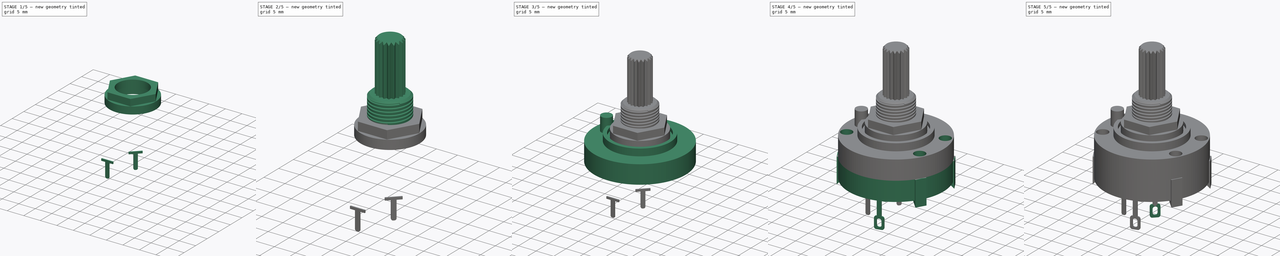
[diagram: build sequence overview — one tinted view per stage of 5, left to right]
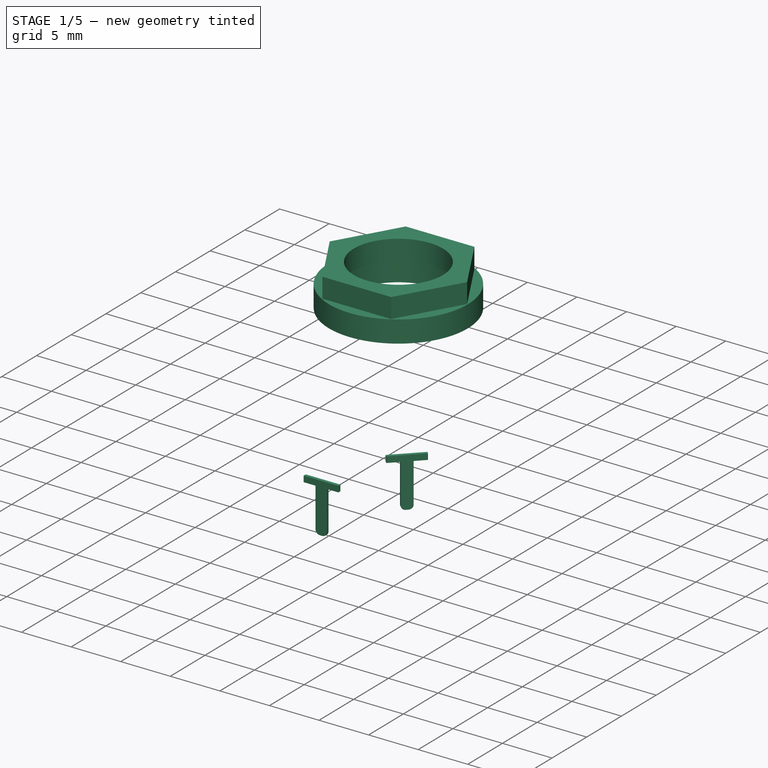
[diagram: stage 1 of 5 — iso view after this stage's code; geometry added in this stage tinted green]
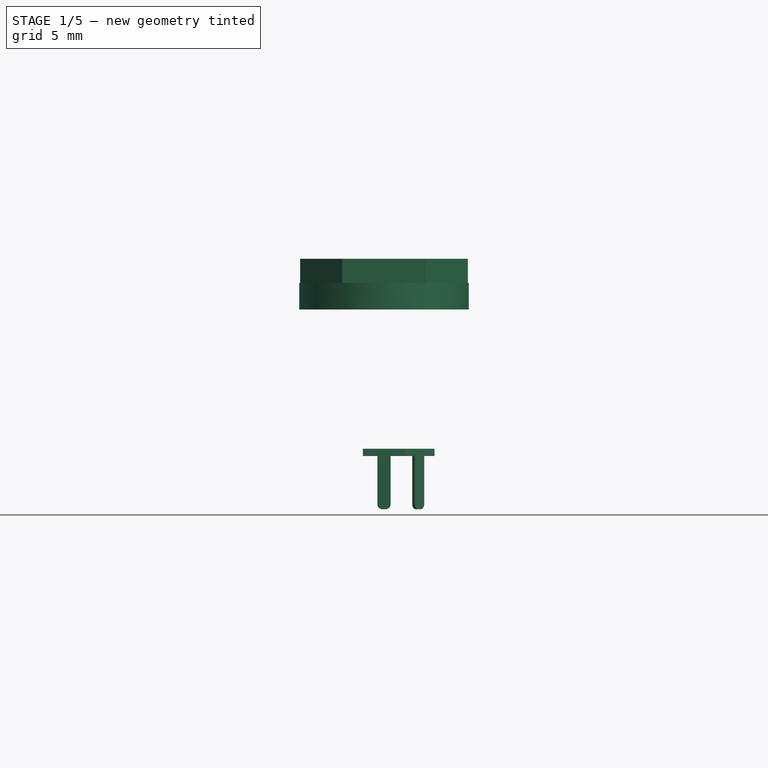
[diagram: stage 1 of 5 — front view after this stage's code; geometry added in this stage tinted green]
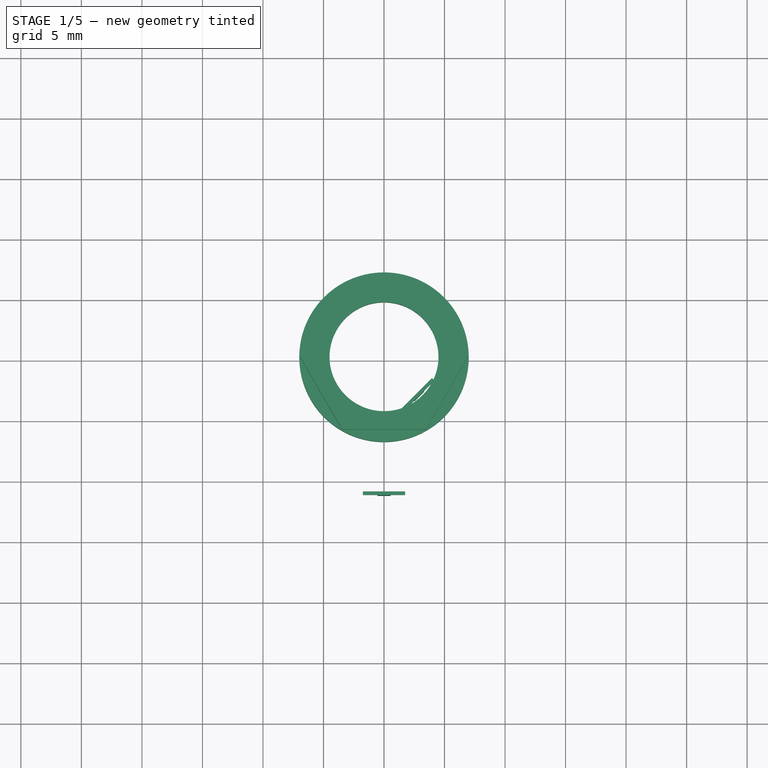
[diagram: stage 1 of 5 — top view after this stage's code; geometry added in this stage tinted green]
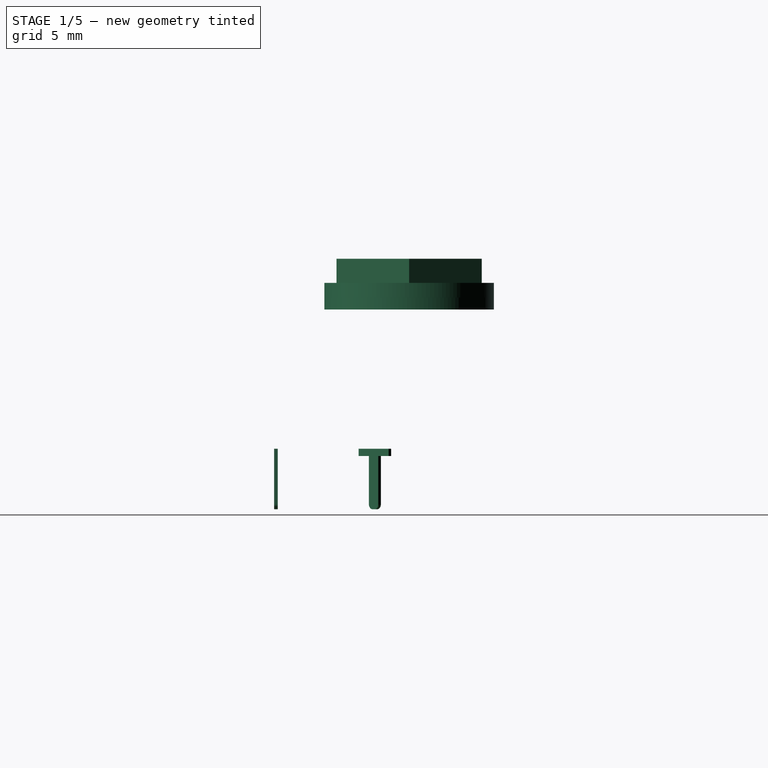
[diagram: stage 1 of 5 — right view after this stage's code; geometry added in this stage tinted green]
FCSTD DOCUMENT  (FreeCAD 0.19R16945 (Git))
Label: Alpha_Taiwan_SR2611_SR2612
License: All rights reserved
LicenseURL: http://en.wikipedia.org/wiki/All_rights_reserved
objects: PartDesign::Body×42, PartDesign::FeatureBase×28, Sketcher::SketchObject×21, PartDesign::Pad×15, PartDesign::Pocket×4, PartDesign::Mirrored×4, PartDesign::Fillet×2, PartDesign::MultiTransform×2, PartDesign::PolarPattern×2, PartDesign::Chamfer×2, Part::Helix×1, PartDesign::ShapeBinder×1, PartDesign::SubtractivePipe×1
note: 145 computed .brp shape members not serialized (recipe doc carries the construction recipe); baked Part::Feature solids carry a one-line shape summary decoded from their .brp

FEATURE [PartDesign::Body] Body004  label="Tab"
  Group = -> [Sketch003,Pad002]
  Origin = -> Origin004
  Tip = -> Pad002
FEATURE [Sketcher::SketchObject] Sketch014
  AttachmentOffset = pos=(0,0,4) rot=(0,0,1;0rad)
  MapMode = 5
  Placement = pos=(0,-4,-9e-16) rot=(1,0,0;1.5708rad)
  Support = -> [XZ_Plane009]
  sketch-geometry (10):
    g0: LineSegment StartX=-1.75 StartY=1.6 StartZ=0 EndX=1.75 EndY=1.6 EndZ=0
    g1: LineSegment StartX=1.75 StartY=1.6 StartZ=0 EndX=1.75 EndY=1 EndZ=0
    g2: LineSegment StartX=-1.75 StartY=1 StartZ=0 EndX=-1.75 EndY=1.6 EndZ=0
    g3: LineSegment StartX=-1.75 StartY=1 StartZ=0 EndX=-0.55 EndY=1 EndZ=0
    g4: LineSegment StartX=-0.55 StartY=1 StartZ=0 EndX=-0.55 EndY=-2.975 EndZ=0
    g5: LineSegment StartX=0.55 StartY=-2.975 StartZ=0 EndX=0.55 EndY=1 EndZ=0
    g6: LineSegment StartX=0.55 StartY=1 StartZ=0 EndX=1.75 EndY=1 EndZ=0
    g7: LineSegment StartX=-0.125 StartY=-3.4 StartZ=0 EndX=0.125 EndY=-3.4 EndZ=0
    g8: ArcOfCircle CenterX=-0.125 CenterY=-2.975 CenterZ=0 NormalX=0 NormalY=0 NormalZ=1 AngleXU=0 Radius=0.425 StartAngle=3.14159 EndAngle=4.71239
    g9: ArcOfCircle CenterX=0.125 CenterY=-2.975 CenterZ=0 NormalX=0 NormalY=0 NormalZ=1 AngleXU=0 Radius=0.425 StartAngle=4.71239 EndAngle=6.28319
  constraints (25):
    c: Coincident(g0,g1)
    c: Coincident(g2,g0)
    c: Horizontal(g0)
    c: Vertical(g1)
    c: Vertical(g2)
    c: Symmetric(g1,g2,g-2)
    c: Coincident(g2,g3)
    c: Horizontal(g3)
    c: Coincident(g3,g4)
    c: Vertical(g4)
    c: Vertical(g5)
    c: Coincident(g5,g6)
    c: Coincident(g6,g1)
    c: DistanceY(g1,g1) = 0.6
    c: DistanceX(g0,g0) = 3.5
    c: Symmetric(g5,g3,g-2)
    c: DistanceX(g3,g5) = 1.1
    c: Tangent(g4,g8) = -1.5708
    c: Tangent(g7,g8) = -1.5708
    c: Tangent(g5,g9) = -1.5708
    c: Tangent(g7,g9) = -1.5708
    c: DistanceY(g7,g1) = 4.4
    c: DistanceY(g0,g-1) = -1.6
    c: Symmetric(g9,g8,g-2)
    c: DistanceX(g7,g7) = 0.25
FEATURE [PartDesign::Pad] Pad008  label="Pad009"
  Length = 0.3
  Length2 = 100
  Midplane = true
  Placement = pos=(0,0,0) rot=(1,0,0;1.5708rad)
  Profile = -> Sketch014
  Type = 0
FEATURE [PartDesign::Body] Body007  label="Shaft"
  Group = -> [Sketch009,Pad006,Chamfer001,Sketch011,Pocket002,PolarPattern001]
  Origin = -> Origin007
  Tip = -> PolarPattern001
FEATURE [Sketcher::SketchObject] Sketch015
  AttachmentOffset = pos=(0,0,11) rot=(0,0,1;0rad)
  MapMode = 5
  Placement = pos=(0,-11,-2.4e-15) rot=(1,0,0;1.5708rad)
  Support = -> [XZ_Plane013]
  expr: Constraints[21] = Sketch014.Constraints[21]
  expr: Constraints[16] = Sketch014.Constraints[16]
  expr: Constraints[22] = Sketch014.Constraints[22]
  expr: Constraints[14] = Sketch014.Constraints[14]
  expr: Constraints[13] = Sketch014.Constraints[13]
  sketch-geometry (10):
    g0: LineSegment StartX=-1.75 StartY=1.6 StartZ=0 EndX=1.75 EndY=1.6 EndZ=0
    g1: LineSegment StartX=1.75 StartY=1.6 StartZ=0 EndX=1.75 EndY=1 EndZ=0
    g2: LineSegment StartX=-1.75 StartY=1 StartZ=0 EndX=-1.75 EndY=1.6 EndZ=0
    g3: LineSegment StartX=-1.75 StartY=1 StartZ=0 EndX=-0.55 EndY=1 EndZ=0
    g4: LineSegment StartX=-0.55 StartY=1 StartZ=0 EndX=-0.55 EndY=-2.975 EndZ=0
    g5: LineSegment StartX=0.55 StartY=-2.975 StartZ=0 EndX=0.55 EndY=1 EndZ=0
    g6: LineSegment StartX=0.55 StartY=1 StartZ=0 EndX=1.75 EndY=1 EndZ=0
    g7: LineSegment StartX=-0.125 StartY=-3.4 StartZ=0 EndX=0.125 EndY=-3.4 EndZ=0
    g8: ArcOfCircle CenterX=-0.125 CenterY=-2.975 CenterZ=0 NormalX=0 NormalY=0 NormalZ=1 AngleXU=0 Radius=0.425 StartAngle=3.14159 EndAngle=4.71239
    g9: ArcOfCircle CenterX=0.125 CenterY=-2.975 CenterZ=0 NormalX=0 NormalY=0 NormalZ=1 AngleXU=0 Radius=0.425 StartAngle=4.71239 EndAngle=6.28319
  constraints (25):
    c: Coincident(g0,g1)
    c: Coincident(g2,g0)
    c: Horizontal(g0)
    c: Vertical(g1)
    c: Vertical(g2)
    c: Symmetric(g1,g2,g-2)
    c: Coincident(g2,g3)
    c: Horizontal(g3)
    c: Coincident(g3,g4)
    c: Vertical(g4)
    c: Vertical(g5)
    c: Coincident(g5,g6)
    c: Coincident(g6,g1)
    c: DistanceY(g1,g1) = 0.6
    c: DistanceX(g0,g0) = 3.5
    c: Symmetric(g5,g3,g-2)
    c: DistanceX(g3,g5) = 1.1
    c: Tangent(g4,g8) = -1.5708
    c: Tangent(g7,g8) = -1.5708
    c: Tangent(g5,g9) = -1.5708
    c: Tangent(g7,g9) = -1.5708
    c: DistanceY(g7,g1) = 4.4
    c: DistanceY(g0,g-1) = -1.6
    c: Symmetric(g9,g8,g-2)
    c: DistanceX(g7,g7) = 0.25
FEATURE [PartDesign::Pad] Pad009  label="Pad010"
  Length = 0.3
  Length2 = 100
  Midplane = true
  Placement = pos=(0,0,0) rot=(1,0,0;1.5708rad)
  Profile = -> Sketch015
  Type = 0
FEATURE [PartDesign::Body] Body018  label="Pin_Throw_6"
  Group = -> [Clone007]
  Origin = -> Origin018
  Placement = pos=(0,0,0) rot=(0,0,1;2.87979rad)
  Tip = -> Clone007
FEATURE [PartDesign::FeatureBase] Clone008
  BaseFeature = -> Body013
FEATURE [PartDesign::Body] Body019  label="Pin_Throw_7"
  Group = -> [Clone008]
  Origin = -> Origin019
  Placement = pos=(0,0,0) rot=(0,0,1;3.40339rad)
  Tip = -> Clone008
FEATURE [PartDesign::FeatureBase] Clone011
  BaseFeature = -> Body013
FEATURE [PartDesign::Body] Body022  label="Pin_Throw_10"
  Group = -> [Clone011]
  Origin = -> Origin022
  Placement = pos=(0,0,0) rot=(0,0,1;4.97419rad)
  Tip = -> Clone011
FEATURE [PartDesign::FeatureBase] Clone013
  BaseFeature = -> Body013
FEATURE [PartDesign::Body] Body024  label="Pin_Throw_12"
  Group = -> [Clone013]
  Origin = -> Origin024
  Placement = pos=(0,0,0) rot=(0,0,-1;0.261799rad)
  Tip = -> Clone013
FEATURE [PartDesign::FeatureBase] Clone005
  BaseFeature = -> Body013
FEATURE [PartDesign::Body] Body016  label="Pin_Throw_4"
  Group = -> [Clone005]
  Origin = -> Origin016
  Placement = pos=(0,0,0) rot=(0,0,1;1.8326rad)
  Tip = -> Clone005
FEATURE [PartDesign::FeatureBase] Clone001
  BaseFeature = -> Body009
  Placement = pos=(0,0,0) rot=(0,0,1;0.785398rad)
FEATURE [PartDesign::Body] Body011  label="Pin_Pole_3"
  Group = -> [Clone001]
  Origin = -> Origin011
  Placement = pos=(0,0,0) rot=(0,0,1;3.14159rad)
  Tip = -> Clone001
FEATURE [PartDesign::FeatureBase] Clone
  BaseFeature = -> Body009
  Placement = pos=(0,0,0) rot=(0,0,1;0.785398rad)
FEATURE [PartDesign::Body] Body010  label="Pin_Pole_2"
  Group = -> [Clone]
  Origin = -> Origin010
  Placement = pos=(0,0,0) rot=(0,0,1;1.5708rad)
  Tip = -> Clone
FEATURE [Sketcher::SketchObject] Sketch018
  AttachmentOffset = pos=(0,0,13.1) rot=(0,0,1;1.5708rad)
  MapMode = 5
  Placement = pos=(0,0,13.1) rot=(0,0,1;1.5708rad)
  Support = -> [XY_Plane042]
  sketch-geometry (2):
    g0: Circle CenterX=0 CenterY=0 CenterZ=0 NormalX=0 NormalY=0 NormalZ=1 AngleXU=0 Radius=5
    g1: Circle CenterX=0 CenterY=0 CenterZ=0 NormalX=0 NormalY=0 NormalZ=1 AngleXU=0 Radius=7
  constraints (4):
    c: Coincident(g0,g-1)
    c: Coincident(g1,g0)
    c: Radius(g0) = 5
    c: Radius(g1) = 7
FEATURE [PartDesign::Pad] Pad012  label="Pad013"
  Length = 1
  Length2 = 100
  Profile = -> Sketch018
  Type = 0
FEATURE [PartDesign::Body] Body042  label="RotationWasher"
  Group = -> [Sketch018,Pad012]
  Origin = -> Origin042
  Tip = -> Pad012
FEATURE [Sketcher::SketchObject] Sketch019
  AttachmentOffset = pos=(0,0,14.1) rot=(0,0,1;0rad)
  MapMode = 5
  Placement = pos=(0,0,14.1) rot=(0,0,1;0rad)
  Support = -> [XY_Plane043]
  sketch-geometry (2):
    g0: Circle CenterX=0 CenterY=0 CenterZ=0 NormalX=0 NormalY=0 NormalZ=1 AngleXU=0 Radius=5
    g1: Circle CenterX=0 CenterY=0 CenterZ=0 NormalX=0 NormalY=0 NormalZ=1 AngleXU=0 Radius=7
  constraints (4):
    c: Coincident(g0,g-1)
    c: Coincident(g1,g0)
    c: Radius(g0) = 5
    c: Radius(g1) = 7
FEATURE [PartDesign::Pad] Pad013  label="Pad014"
  Length = 1.2
  Length2 = 100
  Profile = -> Sketch019
  Type = 0
FEATURE [PartDesign::Body] Body043  label="LockWasher"
  Group = -> [Sketch019,Pad013]
  Origin = -> Origin043
  Tip = -> Pad013
FEATURE [Sketcher::SketchObject] Sketch020
  AttachmentOffset = pos=(0,0,15.3) rot=(0,0,1;0rad)
  MapMode = 5
  Placement = pos=(0,0,15.3) rot=(0,0,1;0rad)
  Support = -> [XY_Plane044]
  sketch-geometry (8):
    g0: Circle CenterX=0 CenterY=0 CenterZ=0 NormalX=0 NormalY=0 NormalZ=1 AngleXU=0 Radius=4.5
    g1: LineSegment StartX=3.4641 StartY=6 StartZ=0 EndX=-3.4641 EndY=6 EndZ=0
    g2: LineSegment StartX=-3.4641 StartY=6 StartZ=0 EndX=-6.9282 EndY=2.7e-15 EndZ=0
    g3: LineSegment StartX=-6.9282 StartY=2.7e-15 StartZ=0 EndX=-3.4641 EndY=-6 EndZ=0
    g4: LineSegment StartX=-3.4641 StartY=-6 StartZ=0 EndX=3.4641 EndY=-6 EndZ=0
    g5: LineSegment StartX=3.4641 StartY=-6 StartZ=0 EndX=6.9282 EndY=1.8e-15 EndZ=0
    g6: LineSegment StartX=6.9282 StartY=1.8e-15 StartZ=0 EndX=3.4641 EndY=6 EndZ=0
    g7: Circle [constr] CenterX=0 CenterY=0 CenterZ=0 NormalX=0 NormalY=0 NormalZ=1 AngleXU=0 Radius=6.9282
  constraints (18):
    c: Coincident(g0,g-1)
    c: Radius(g0) = 4.5
    c: Coincident(g1,g2)
    c: Coincident(g2,g3)
    c: Coincident(g3,g4)
    c: Coincident(g4,g5)
    c: Coincident(g5,g6)
    c: Coincident(g6,g1)
    c: Equal(g1, g2-g6) x5
    c: PointOnObject(g1,g7)
    c: PointOnObject(g2,g7)
    c: PointOnObject(g3,g7)
    c: PointOnObject(g4,g7)
    c: PointOnObject(g5,g7)
    c: PointOnObject(g6,g7)
    c: Coincident(g7,g0)
    c: Horizontal(g1)
    c: DistanceY(g4,g1) = 12
FEATURE [PartDesign::Pad] Pad014  label="Pad015"
  Length = 2
  Length2 = 100
  Profile = -> Sketch020
  Type = 0
FEATURE [PartDesign::Body] Body044  label="Nut"
  Group = -> [Sketch020,Pad014]
  Origin = -> Origin044
  Tip = -> Pad014
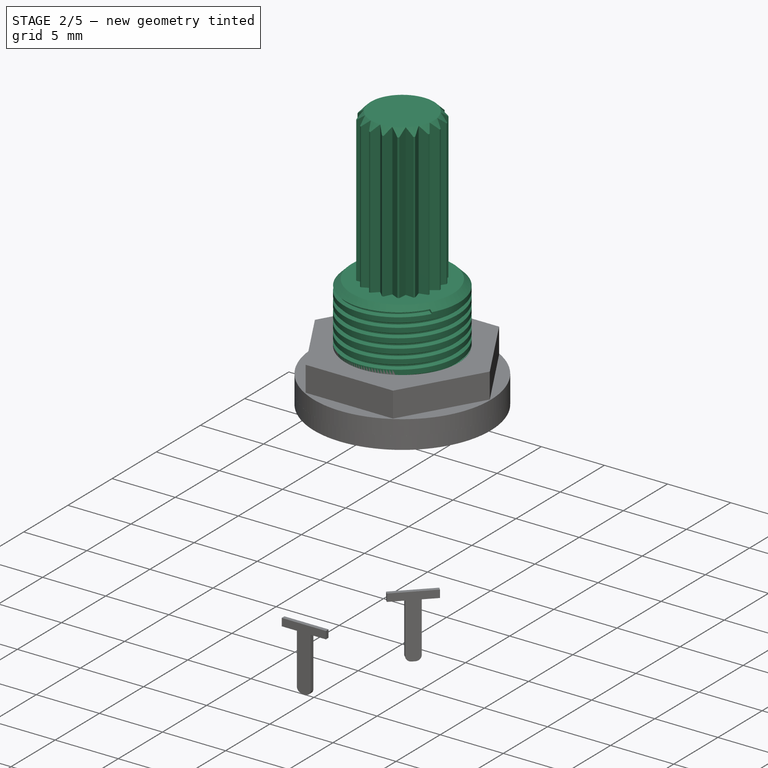
[diagram: stage 2 of 5 — iso view after this stage's code; geometry added in this stage tinted green]
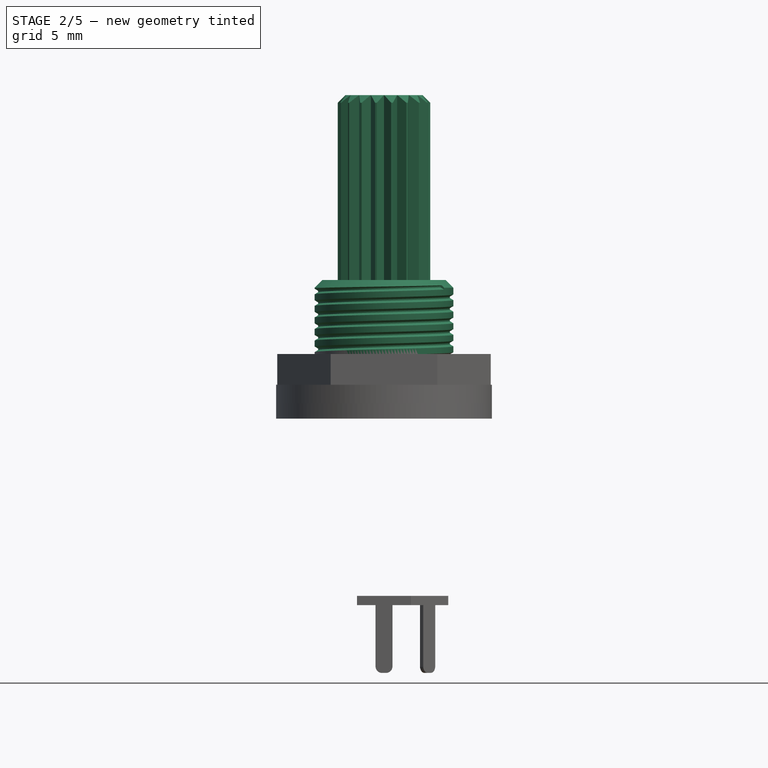
[diagram: stage 2 of 5 — front view after this stage's code; geometry added in this stage tinted green]
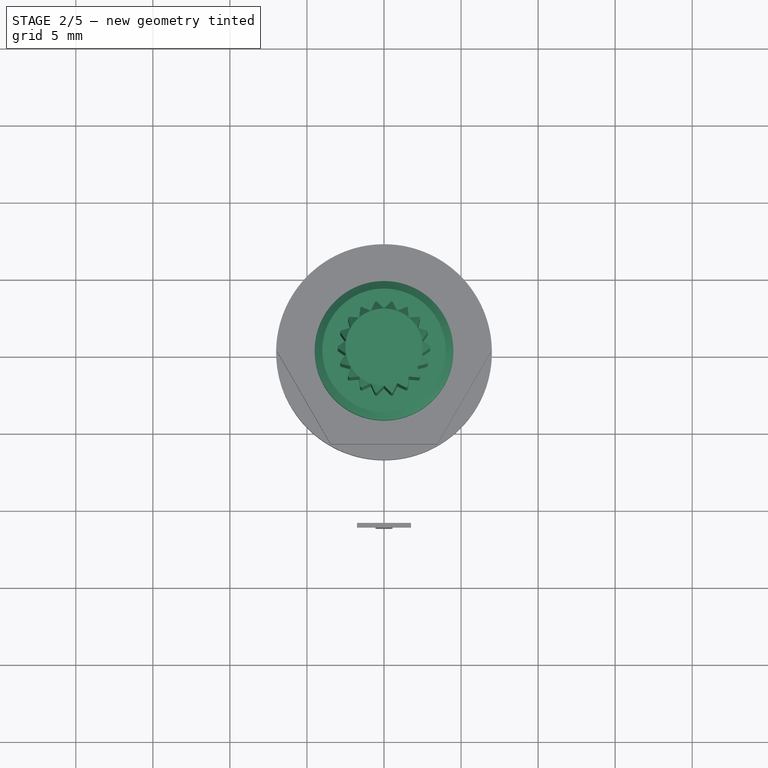
[diagram: stage 2 of 5 — top view after this stage's code; geometry added in this stage tinted green]
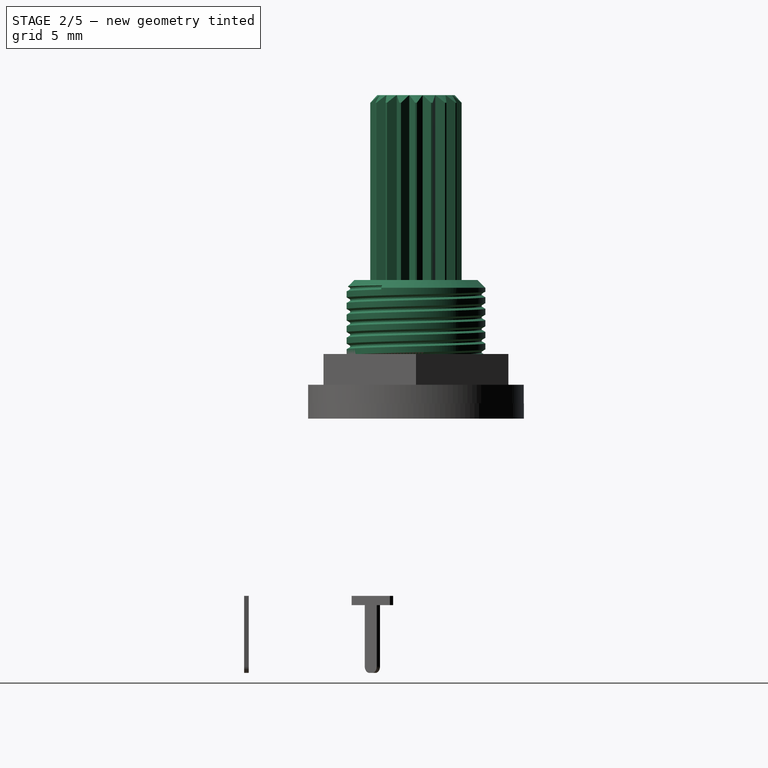
[diagram: stage 2 of 5 — right view after this stage's code; geometry added in this stage tinted green]
FEATURE [PartDesign::Body] Body005  label="Ring"
  Group = -> [Sketch004,Pad003,Sketch005,Pocket,Sketch006,Pocket001,PolarPattern,Sketch007,Pad004]
  Origin = -> Origin005
  Tip = -> Pad004
FEATURE [Sketcher::SketchObject] Sketch008
  AttachmentOffset = pos=(0,0,14.1) rot=(0,0,1;1.5708rad)
  MapMode = 5
  Placement = pos=(0,0,14.1) rot=(0,0,1;1.5708rad)
  Support = -> [XY_Plane006]
  sketch-geometry (1):
    g0: Circle CenterX=0 CenterY=0 CenterZ=0 NormalX=0 NormalY=0 NormalZ=1 AngleXU=0 Radius=4.5
  constraints (2):
    c: Coincident(g0,g-1)
    c: Radius(g0) = 4.5
FEATURE [PartDesign::Pad] Pad005  label="Pad006"
  Length = 8
  Length2 = 100
  Profile = -> Sketch008
  Type = 0
FEATURE [PartDesign::Chamfer] Chamfer
  Base = -> Pad005 [Edge3]
  BaseFeature = -> Pad005
  Size = 0.5
FEATURE [PartDesign::ShapeBinder] ShapeBinder
  Placement = pos=(0,0,14.1) rot=(0,0,1;1.5708rad)
  Support = -> [Helix]
  TraceSupport = false
FEATURE [Sketcher::SketchObject] Sketch010
  AttachmentOffset = pos=(4.5,14.2,1) rot=(0,0,1;0rad)
  MapMode = 5
  Placement = pos=(4.5,-1,14.2) rot=(1,0,0;1.5708rad)
  Support = -> [XZ_Plane006]
  sketch-geometry (5):
    g0: LineSegment StartX=0.221607 StartY=-0.375 StartZ=0 EndX=0.221607 EndY=0.375 EndZ=0
    g1: Circle [constr] CenterX=0 CenterY=0 CenterZ=0 NormalX=0 NormalY=0 NormalZ=1 AngleXU=0 Radius=0.435585
    g2: LineSegment StartX=-0.346722 StartY=0.046875 StartZ=0 EndX=-0.346722 EndY=-0.046875 EndZ=0
    g3: LineSegment StartX=-0.346722 StartY=0.046875 StartZ=0 EndX=0.221607 EndY=0.375 EndZ=0
    g4: LineSegment StartX=0.221607 StartY=-0.375 StartZ=0 EndX=-0.346722 EndY=-0.046875 EndZ=0
  constraints (11):
    c: PointOnObject(g0,g1)
    c: Coincident(g1,g-1)
    c: DistanceY(g0,g0) = 0.75
    c: Coincident(g3,g2)
    c: Coincident(g3,g0)
    c: Coincident(g4,g0)
    c: Coincident(g4,g2)
    c: Symmetric(g2,g2,g-1)
    c: Symmetric(g0,g0,g-1)
    c: DistanceY(g2,g2) = 0.09375
    c: Angle(g4,g3) = 1.0472
FEATURE [PartDesign::SubtractivePipe] SubtractivePipe
  AuxilleryCurvelinear = true
  AuxillerySpineTangent = false
  BaseFeature = -> Chamfer
  Binormal = (0,0,0)
  Mode = 2
  Profile = -> Sketch010
  Spine = -> ShapeBinder
  SpineTangent = false
  Transformation = 0
  Transition = 0
FEATURE [PartDesign::Body] Body006  label="Thread"
  Group = -> [Sketch008,Pad005,Chamfer,ShapeBinder,Sketch010,SubtractivePipe]
  Origin = -> Origin006
  Tip = -> SubtractivePipe
FEATURE [Sketcher::SketchObject] Sketch009
  AttachmentOffset = pos=(0,0,22.1) rot=(0,0,1;1.5708rad)
  MapMode = 5
  Placement = pos=(0,0,22.1) rot=(0,0,1;1.5708rad)
  Support = -> [XY_Plane007]
  sketch-geometry (1):
    g0: Circle CenterX=0 CenterY=0 CenterZ=0 NormalX=0 NormalY=0 NormalZ=1 AngleXU=0 Radius=3
  constraints (2):
    c: Coincident(g0,g-1)
    c: Radius(g0) = 3
FEATURE [PartDesign::Pad] Pad006  label="Pad007"
  Length = 12
  Length2 = 100
  Profile = -> Sketch009
  Type = 0
FEATURE [PartDesign::Chamfer] Chamfer001
  Base = -> Pad006 [Edge3]
  BaseFeature = -> Pad006
  Size = 0.5
FEATURE [Sketcher::SketchObject] Sketch011
  MapMode = 5
  Placement = pos=(0,0,34.1) rot=(0,0,1;0rad)
  Support = -> [Chamfer001]
  sketch-geometry (4):
    g0: LineSegment StartX=0 StartY=2.5 StartZ=0 EndX=2.61764 EndY=5.11764 EndZ=0
    g1: LineSegment StartX=2.61764 StartY=5.11764 StartZ=0 EndX=-2.61764 EndY=5.11764 EndZ=0
    g2: LineSegment StartX=-2.61764 StartY=5.11764 StartZ=0 EndX=0 EndY=2.5 EndZ=0
    g3: Circle [constr] CenterX=0 CenterY=5.11764 CenterZ=0 NormalX=0 NormalY=0 NormalZ=1 AngleXU=0 Radius=2.61764
  constraints (11):
    c: Coincident(g0,g1)
    c: Coincident(g1,g2)
    c: Coincident(g2,g0)
    c: Equal(g0,g2)
    c: PointOnObject(g0,g3)
    c: PointOnObject(g1,g3)
    c: PointOnObject(g2,g3)
    c: PointOnObject(g2,g-2)
    c: PointOnObject(g3,g-2)
    c: Angle(g0,g2) = 1.5708
    c: DistanceY(g-1,g0) = 2.5
FEATURE [PartDesign::Pocket] Pocket002
  BaseFeature = -> Chamfer001
  Length = 12
  Length2 = 100
  Profile = -> Sketch011
  Type = 0
FEATURE [PartDesign::PolarPattern] PolarPattern001
  Angle = 360
  Axis = -> Sketch011 [N_Axis]
  BaseFeature = -> Pocket002
  Occurrences = 18
  Originals = -> [Pocket002]
FEATURE [PartDesign::Body] Body015  label="Pin_Throw_3"
  Group = -> [Clone004]
  Origin = -> Origin015
  Placement = pos=(0,0,0) rot=(0,0,1;1.309rad)
  Tip = -> Clone004
FEATURE [PartDesign::FeatureBase] Clone012
  BaseFeature = -> Body013
FEATURE [PartDesign::Body] Body023  label="Pin_Throw_11"
  Group = -> [Clone012]
  Origin = -> Origin023
  Placement = pos=(0,0,0) rot=(0,0,-1;0.785398rad)
  Tip = -> Clone012
FEATURE [PartDesign::FeatureBase] Clone010
  BaseFeature = -> Body013
FEATURE [PartDesign::Body] Body021  label="Pin_Throw_9"
  Group = -> [Clone010]
  Origin = -> Origin021
  Placement = pos=(0,0,0) rot=(0,0,-1;1.8326rad)
  Tip = -> Clone010
FEATURE [PartDesign::FeatureBase] Clone009
  BaseFeature = -> Body013
FEATURE [PartDesign::Body] Body020  label="Pin_Throw_8"
  Group = -> [Clone009]
  Origin = -> Origin020
  Placement = pos=(0,0,0) rot=(0,0,1;3.92699rad)
  Tip = -> Clone009
FEATURE [PartDesign::FeatureBase] Clone007
  BaseFeature = -> Body013
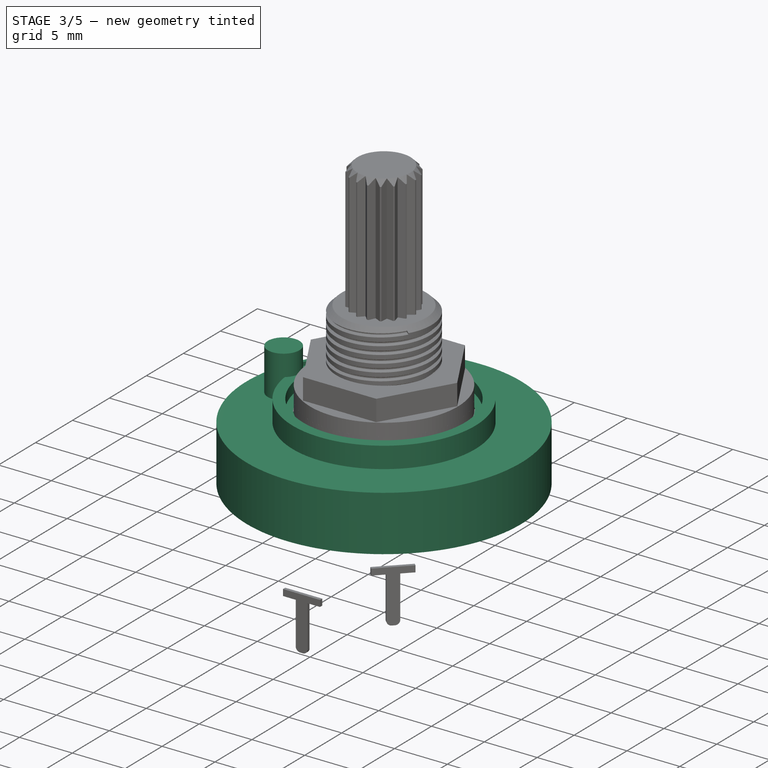
[diagram: stage 3 of 5 — iso view after this stage's code; geometry added in this stage tinted green]
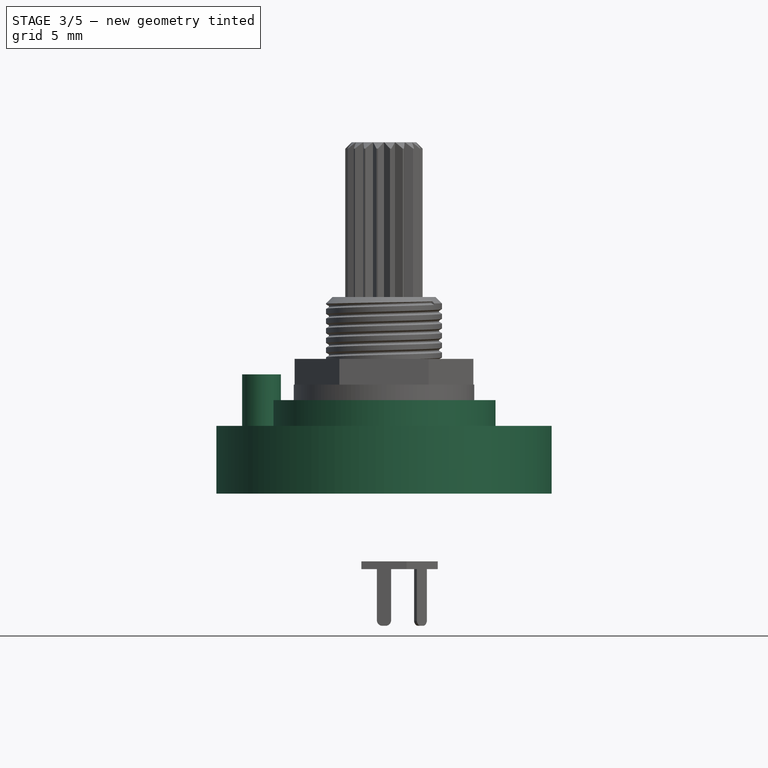
[diagram: stage 3 of 5 — front view after this stage's code; geometry added in this stage tinted green]
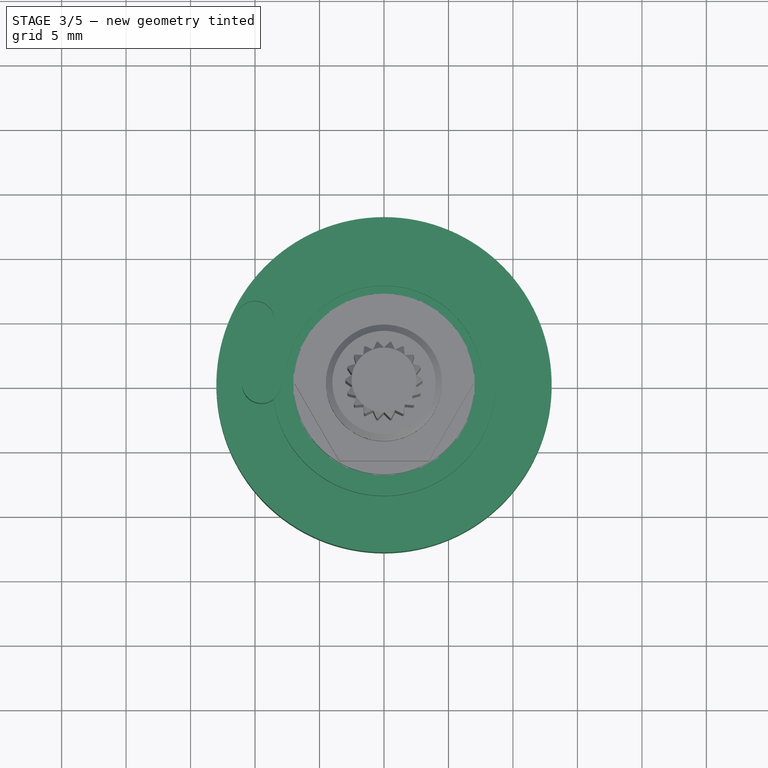
[diagram: stage 3 of 5 — top view after this stage's code; geometry added in this stage tinted green]
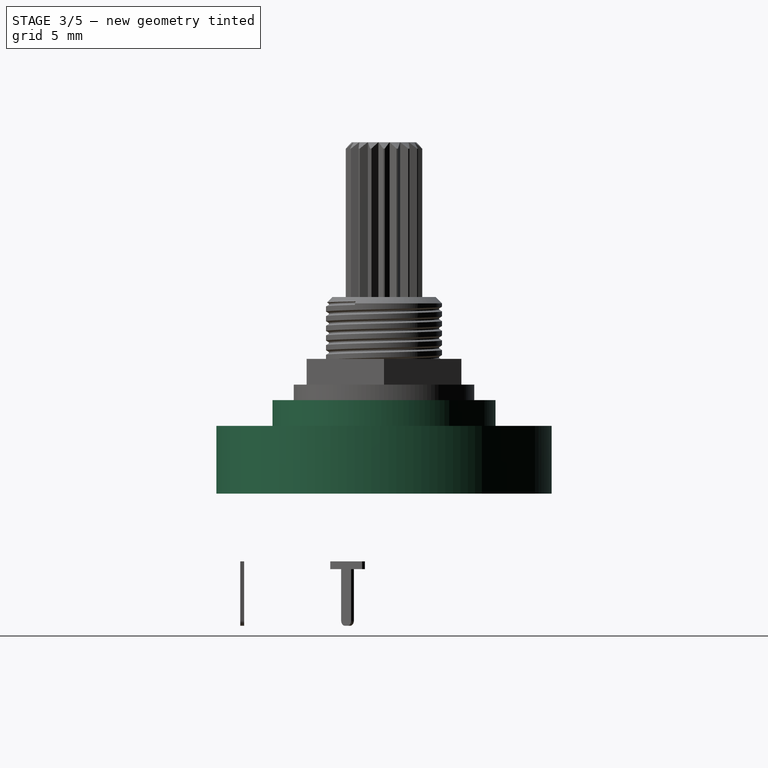
[diagram: stage 3 of 5 — right view after this stage's code; geometry added in this stage tinted green]
FEATURE [PartDesign::Body] Body001  label="BodyBottom"
  Group = -> [Sketch001,Pad]
  Origin = -> Origin001
  Tip = -> Pad
FEATURE [Sketcher::SketchObject] Sketch  label="MSketch"
  MapMode = 5
  Support = -> [XY_Plane]
  sketch-geometry (2):
    g0: Circle CenterX=0 CenterY=0 CenterZ=0 NormalX=0 NormalY=0 NormalZ=1 AngleXU=0 Radius=13
    g1: Circle CenterX=-9 CenterY=0 CenterZ=0 NormalX=0 NormalY=0 NormalZ=1 AngleXU=0 Radius=1.5
  constraints (5):
    c: Coincident(g0,g-1)
    c: Radius(g0) = 13
    c: PointOnObject(g1,g-1)
    c: DistanceX(g1,g0) = 9
    c: Radius(g1) = 1.5
FEATURE [PartDesign::Body] Body  label="MBody"
  Group = -> [Sketch]
  Origin = -> Origin
FEATURE [Sketcher::SketchObject] Sketch002
  AttachmentOffset = pos=(0,0,6.85) rot=(0,0,1;1.5708rad)
  MapMode = 5
  Placement = pos=(0,0,6.85) rot=(0,0,1;1.5708rad)
  Support = -> [XY_Plane003]
  expr: AttachmentOffset.Base.z = 6.85
  expr: Constraints[1] = Sketch.Constraints[1]
  sketch-geometry (1):
    g0: Circle CenterX=0 CenterY=0 CenterZ=0 NormalX=0 NormalY=0 NormalZ=1 AngleXU=0 Radius=13
  constraints (2):
    c: Coincident(g0,g-1)
    c: Radius(g0) = 13
FEATURE [PartDesign::Pad] Pad001  label="Pad003"
  Length = 5.25
  Length2 = 100
  Profile = -> Sketch002
  Type = 0
FEATURE [Sketcher::SketchObject] Sketch012
  AttachmentOffset = pos=(-10,5,0) rot=(0,0,1;0rad)
  MapMode = 5
  Placement = pos=(-10,5,12.1) rot=(0,0,1;0rad)
  Support = -> [Pad001]
  sketch-geometry (1):
    g0: Circle CenterX=0 CenterY=0 CenterZ=0 NormalX=0 NormalY=0 NormalZ=1 AngleXU=0 Radius=1.5
  constraints (2):
    c: Coincident(g0,g-1)
    c: Radius(g0) = 1.5
FEATURE [PartDesign::Pocket] Pocket003
  BaseFeature = -> Pad001
  Length = 2
  Length2 = 100
  Profile = -> Sketch012
  Type = 0
FEATURE [PartDesign::Body] Body003  label="BodyTop"
  Group = -> [Sketch002,Pad001,Sketch012,Pocket003,MultiTransform,Mirrored,Mirrored001,Sketch013,Pad007,MultiTransform001,Mirrored002,Mirrored003]
  Origin = -> Origin003
  Tip = -> MultiTransform001
FEATURE [Sketcher::SketchObject] Sketch003
  AttachmentOffset = pos=(-9.5,0,12.1) rot=(0,0,1;1.5708rad)
  MapMode = 5
  Placement = pos=(-9.5,0,12.1) rot=(0,0,1;1.5708rad)
  Support = -> [XY_Plane004]
  sketch-geometry (1):
    g0: Circle CenterX=0 CenterY=0 CenterZ=0 NormalX=0 NormalY=0 NormalZ=1 AngleXU=0 Radius=1.5
  constraints (2):
    c: Coincident(g0,g-1)
    c: Radius(g0) = 1.5
FEATURE [PartDesign::Pad] Pad002
  Length = 4
  Length2 = 100
  Profile = -> Sketch003
  Type = 0
FEATURE [PartDesign::Body] Body009  label="Pin_Pole_1"
  Group = -> [Sketch014,Pad008]
  Origin = -> Origin009
  Placement = pos=(0,0,0) rot=(0,0,1;0.785398rad)
  Tip = -> Pad008
FEATURE [PartDesign::FeatureBase] Clone002
  BaseFeature = -> Body009
  Placement = pos=(0,0,0) rot=(0,0,1;0.785398rad)
FEATURE [PartDesign::Body] Body012  label="Pin_Pole_4"
  Group = -> [Clone002]
  Origin = -> Origin012
  Placement = pos=(0,0,0) rot=(0,0,-1;1.5708rad)
  Tip = -> Clone002
FEATURE [Sketcher::SketchObject] Sketch004
  AttachmentOffset = pos=(0,0,12.1) rot=(0,0,1;1.5708rad)
  MapMode = 5
  Placement = pos=(0,0,12.1) rot=(0,0,1;1.5708rad)
  Support = -> [XY_Plane005]
  sketch-geometry (1):
    g0: Circle CenterX=0 CenterY=0 CenterZ=0 NormalX=0 NormalY=0 NormalZ=1 AngleXU=0 Radius=8.65
  constraints (2):
    c: Coincident(g0,g-1)
    c: Radius(g0) = 8.65
FEATURE [PartDesign::Pad] Pad003  label="Pad004"
  Length = 2
  Length2 = 100
  Profile = -> Sketch004
  Type = 0
FEATURE [Sketcher::SketchObject] Sketch005
  ExternalGeometry = -> [Pad003]
  MapMode = 5
  Placement = pos=(0,0,14.1) rot=(0,0,1;0rad)
  Support = -> [Pad003]
  sketch-geometry (3):
    g0: Circle CenterX=0 CenterY=0 CenterZ=0 NormalX=0 NormalY=0 NormalZ=1 AngleXU=0 Radius=7.65
    g1: GeomPoint X=-7.65 Y=0 Z=0
    g2: GeomPoint X=-8.65 Y=0 Z=0
  constraints (6):
    c: Coincident(g0,g-1)
    c: PointOnObject(g1,g0)
    c: PointOnObject(g1,g-1)
    c: PointOnObject(g2,g-3)
    c: PointOnObject(g2,g-1)
    c: DistanceX(g2,g1) = 1
FEATURE [PartDesign::Pocket] Pocket
  BaseFeature = -> Pad003
  Length = 1
  Length2 = 100
  Profile = -> Sketch005
  Type = 0
FEATURE [Sketcher::SketchObject] Sketch006
  AttachmentOffset = pos=(0,0,0) rot=(0,0,1;0.785398rad)
  MapMode = 5
  Placement = pos=(0,0,13.1) rot=(0,0,1;0.785398rad)
  Support = -> [Pocket]
  sketch-geometry (6):
    g0: LineSegment StartX=-7 StartY=1 StartZ=0 EndX=-6 EndY=1 EndZ=0
    g1: LineSegment StartX=-6 StartY=1 StartZ=0 EndX=-6 EndY=-1 EndZ=0
    g2: LineSegment StartX=-6 StartY=-1 StartZ=0 EndX=-7 EndY=-1 EndZ=0
    g3: LineSegment StartX=-7 StartY=-1 StartZ=0 EndX=-7 EndY=1 EndZ=0
    g4: LineSegment [constr] StartX=-6 StartY=1 StartZ=0 EndX=-7 EndY=-1 EndZ=0
    g5: GeomPoint X=-6.5 Y=0 Z=0
  constraints (15):
    c: Coincident(g0,g1)
    c: Coincident(g1,g2)
    c: Coincident(g2,g3)
    c: Coincident(g3,g0)
    c: Horizontal(g2)
    c: Vertical(g3)
    c: DistanceY(g1,g1) = 2
    c: DistanceX(g0,g0) = 1
    c: Horizontal(g0)
    c: Coincident(g4,g2)
    c: Coincident(g0,g4)
    c: PointOnObject(g5,g4)
    c: PointOnObject(g5,g-1)
    c: Symmetric(g0,g1,g-1)
    c: DistanceX(g5,g-1) = 6.5
FEATURE [PartDesign::Pocket] Pocket001
  BaseFeature = -> Pocket
  Length = 5
  Length2 = 100
  Profile = -> Sketch006
  Type = 1
FEATURE [PartDesign::PolarPattern] PolarPattern
  Angle = 360
  Axis = -> Sketch006 [N_Axis]
  BaseFeature = -> Pocket001
  Occurrences = 12
  Originals = -> [Pocket001]
FEATURE [Sketcher::SketchObject] Sketch007
  AttachmentOffset = pos=(0,0,0) rot=(0,0,1;1.5708rad)
  MapMode = 5
  Placement = pos=(0,0,13.1) rot=(0,0,1;1.5708rad)
  Support = -> [PolarPattern]
  sketch-geometry (1):
    g0: Circle CenterX=0 CenterY=0 CenterZ=0 NormalX=0 NormalY=0 NormalZ=1 AngleXU=0 Radius=4.75
  constraints (2):
    c: Coincident(g0,g-1)
    c: Radius(g0) = 4.75
FEATURE [PartDesign::Pad] Pad004  label="Pad005"
  BaseFeature = -> PolarPattern
  Length = 1
  Length2 = 100
  Profile = -> Sketch007
  Type = 0
FEATURE [PartDesign::Body] Body013  label="Pin_Throw_1"
  Group = -> [Sketch015,Pad009]
  Origin = -> Origin013
  Placement = pos=(0,0,0) rot=(0,0,1;0.261799rad)
  Tip = -> Pad009
FEATURE [PartDesign::FeatureBase] Clone006
  BaseFeature = -> Body013
FEATURE [PartDesign::Body] Body017  label="Pin_Throw_5"
  Group = -> [Clone006]
  Origin = -> Origin017
  Placement = pos=(0,0,0) rot=(0,0,1;2.35619rad)
  Tip = -> Clone006
FEATURE [PartDesign::FeatureBase] Clone003
  BaseFeature = -> Body013
FEATURE [PartDesign::Body] Body014  label="Pin_Throw_2"
  Group = -> [Clone003]
  Origin = -> Origin014
  Placement = pos=(0,0,0) rot=(0,0,1;0.785398rad)
  Tip = -> Clone003
FEATURE [PartDesign::FeatureBase] Clone004
  BaseFeature = -> Body013
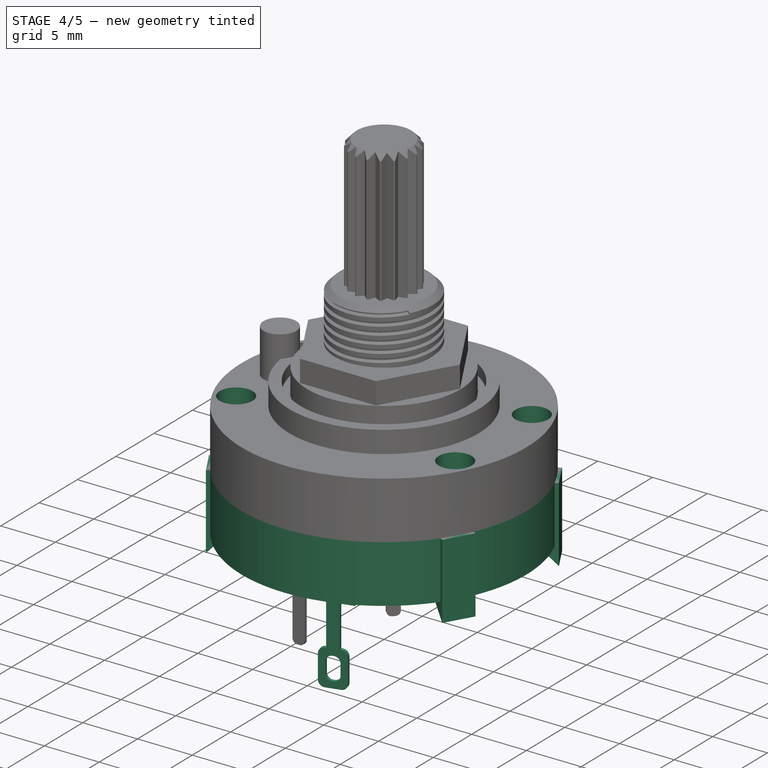
[diagram: stage 4 of 5 — iso view after this stage's code; geometry added in this stage tinted green]
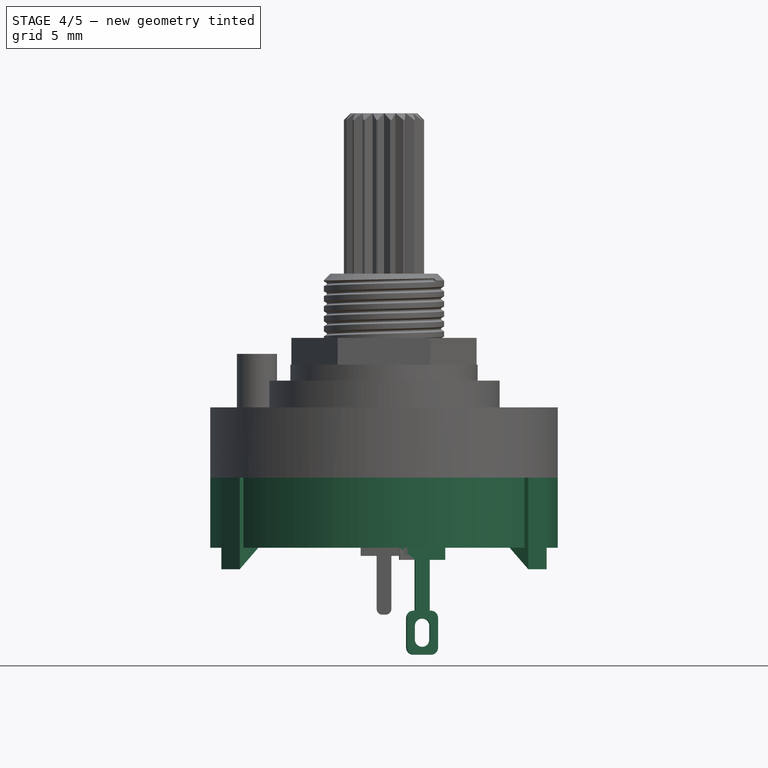
[diagram: stage 4 of 5 — front view after this stage's code; geometry added in this stage tinted green]
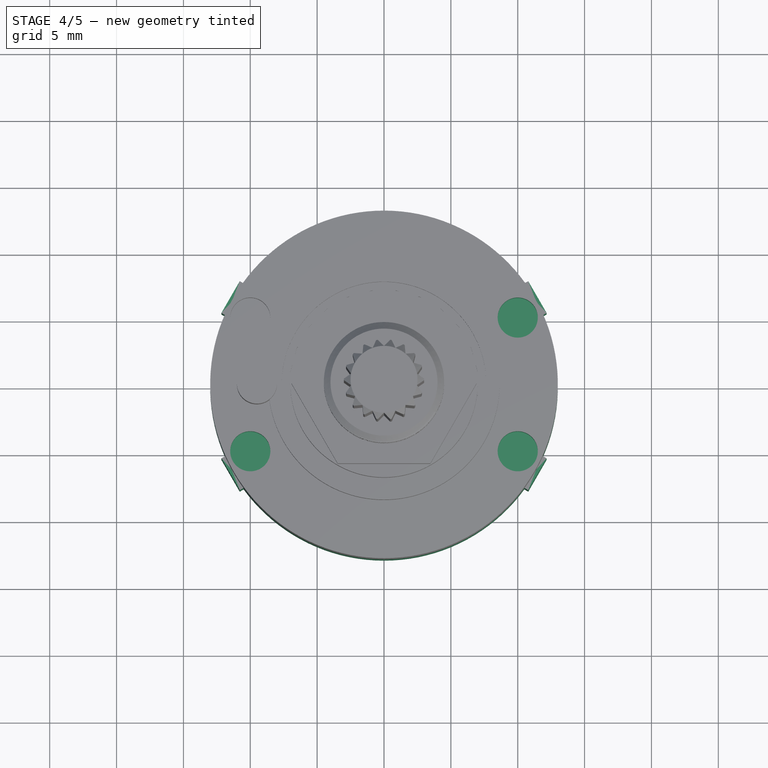
[diagram: stage 4 of 5 — top view after this stage's code; geometry added in this stage tinted green]
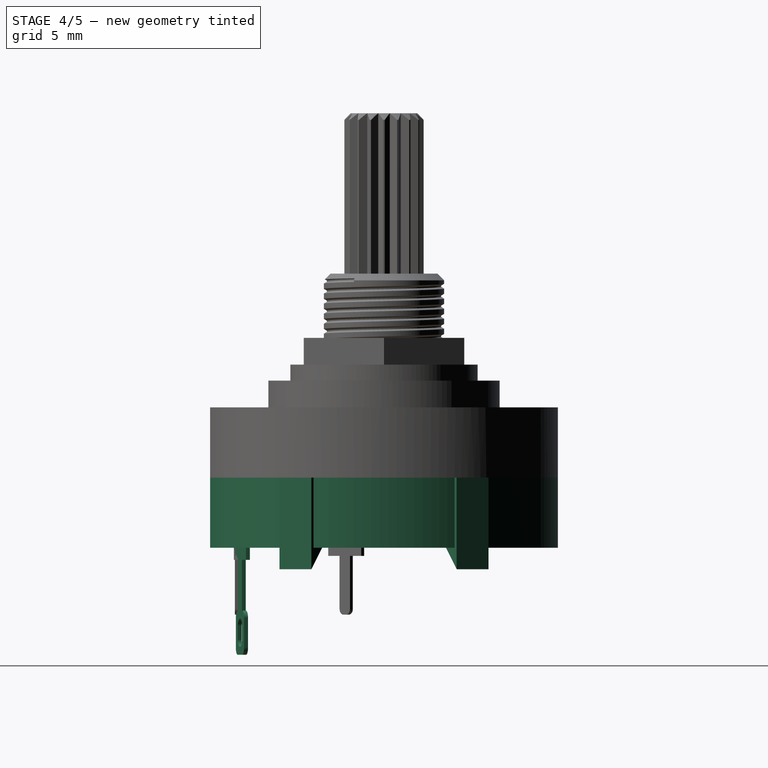
[diagram: stage 4 of 5 — right view after this stage's code; geometry added in this stage tinted green]
FEATURE [PartDesign::Body] Body028  label="Terminal_Pole_4"
  BaseFeature = -> Body025
  Group = -> [Clone016]
  Origin = -> Origin028
  Placement = pos=(0,0,0) rot=(0,0,-1;1.5708rad)
  Tip = -> Clone016
FEATURE [Sketcher::SketchObject] Sketch017
  AttachmentOffset = pos=(0,0,11) rot=(0,0,1;0rad)
  MapMode = 5
  Placement = pos=(0,-11,-2.4e-15) rot=(1,0,0;1.5708rad)
  Support = -> [XZ_Plane029]
  expr: Constraints[43] = Sketch016.Constraints[43]
  expr: Constraints[41] = Sketch016.Constraints[41]
  expr: Constraints[40] = Sketch016.Constraints[40]
  expr: Constraints[29] = Sketch016.Constraints[29]
  expr: Constraints[31] = Sketch016.Constraints[31]
  expr: Constraints[28] = Sketch016.Constraints[28]
  expr: Constraints[16] = Sketch016.Constraints[16]
  expr: Constraints[15] = Sketch016.Constraints[15]
  expr: Constraints[42] = Sketch016.Constraints[42]
  expr: Constraints[13] = Sketch016.Constraints[13]
  sketch-geometry (16):
    g0: LineSegment StartX=-1.75 StartY=1.6 StartZ=0 EndX=1.75 EndY=1.6 EndZ=0
    g1: LineSegment StartX=1.75 StartY=1.6 StartZ=0 EndX=1.75 EndY=0.7 EndZ=0
    g2: LineSegment StartX=-1.75 StartY=0.7 StartZ=0 EndX=-1.75 EndY=1.6 EndZ=0
    g3: LineSegment StartX=-1.75 StartY=0.7 StartZ=0 EndX=-0.55 EndY=0.7 EndZ=0
    g4: LineSegment StartX=-0.55 StartY=0.7 StartZ=0 EndX=-0.55 EndY=-3.1 EndZ=0
    g5: LineSegment StartX=0.55 StartY=-3.1 StartZ=0 EndX=0.55 EndY=0.7 EndZ=0
    g6: LineSegment StartX=0.55 StartY=0.7 StartZ=0 EndX=1.75 EndY=0.7 EndZ=0
    g7: LineSegment StartX=-0.55 StartY=-3.1 StartZ=0 EndX=-1.2 EndY=-3.1 EndZ=0
    g8: LineSegment StartX=1.2 StartY=-3.1 StartZ=0 EndX=0.55 EndY=-3.1 EndZ=0
    g9: LineSegment StartX=-1.2 StartY=-3.1 StartZ=0 EndX=-1.2 EndY=-6.4 EndZ=0
    g10: LineSegment StartX=-1.2 StartY=-6.4 StartZ=0 EndX=1.2 EndY=-6.4 EndZ=0
    g11: LineSegment StartX=1.2 StartY=-6.4 StartZ=0 EndX=1.2 EndY=-3.1 EndZ=0
    g12: LineSegment StartX=-0.6 StartY=-3.7 StartZ=0 EndX=0.6 EndY=-3.7 EndZ=0
    g13: LineSegment StartX=0.6 StartY=-3.7 StartZ=0 EndX=0.6 EndY=-5.8 EndZ=0
    g14: LineSegment StartX=0.6 StartY=-5.8 StartZ=0 EndX=-0.6 EndY=-5.8 EndZ=0
    g15: LineSegment StartX=-0.6 StartY=-5.8 StartZ=0 EndX=-0.6 EndY=-3.7 EndZ=0
  constraints (44):
    c: Coincident(g0,g1)
    c: Coincident(g2,g0)
    c: Horizontal(g0)
    c: Vertical(g1)
    c: Vertical(g2)
    c: Symmetric(g1,g2,g-2)
    c: Coincident(g2,g3)
    c: Horizontal(g3)
    c: Coincident(g3,g4)
    c: Vertical(g4)
    c: Vertical(g5)
    c: Coincident(g5,g6)
    c: Coincident(g6,g1)
    c: DistanceX(g0,g0) = 3.5
    c: Symmetric(g5,g3,g-2)
    c: DistanceX(g3,g5) = 1.1
    c: DistanceY(g0,g-1) = -1.6
    c: Coincident(g4,g7)
    c: Horizontal(g7)
    c: Coincident(g8,g5)
    c: Horizontal(g8)
    c: Horizontal(g4,g5)
    c: Coincident(g7,g9)
    c: Vertical(g9)
    c: Coincident(g9,g10)
    c: Coincident(g10,g11)
    c: Coincident(g11,g8)
    c: Vertical(g11)
    c: DistanceY(g11,g11) = 3.3
    c: DistanceX(g10,g10) = 2.4
    c: Symmetric(g9,g10,g-2)
    c: DistanceY(g10,g0) = 8
    c: Coincident(g12,g13)
    c: Coincident(g13,g14)
    c: Coincident(g14,g15)
    c: Coincident(g15,g12)
    c: Horizontal(g14)
    c: Vertical(g13)
    c: Vertical(g15)
    c: Symmetric(g12,g12,g-2)
    c: DistanceX(g14,g14) = 1.2
    c: DistanceY(g13,g13) = 2.1
    c: DistanceY(g9,g14) = 0.6
    c: DistanceY(g9,g2) = 7.1
FEATURE [PartDesign::Pad] Pad011  label="Pad012"
  Length = 0.3
  Length2 = 100
  Midplane = true
  Placement = pos=(0,0,0) rot=(1,0,0;1.5708rad)
  Profile = -> Sketch017
  Type = 0
FEATURE [PartDesign::Fillet] Fillet001
  Base = -> Pad011 [Edge29,Edge26,Edge23,Edge32,Edge44,Edge41,Edge37,Edge38]
  BaseFeature = -> Pad011
  Placement = pos=(0,0,0) rot=(1,0,0;1.5708rad)
  Radius = 0.55
FEATURE [PartDesign::Body] Body036  label="Terminal_Throw_7"
  BaseFeature = -> Body029
  Group = -> [Clone023]
  Origin = -> Origin036
  Placement = pos=(0,0,0) rot=(0,0,1;3.14159rad)
  Tip = -> Clone023
FEATURE [PartDesign::FeatureBase] Clone024
  BaseFeature = -> Body029
  Placement = pos=(0,0,0) rot=(0,0,1;0.261799rad)
FEATURE [PartDesign::Body] Body037  label="Terminal_Throw_8"
  BaseFeature = -> Body029
  Group = -> [Clone024]
  Origin = -> Origin037
  Placement = pos=(0,0,0) rot=(0,0,1;3.66519rad)
  Tip = -> Clone024
FEATURE [PartDesign::FeatureBase] Clone025
  BaseFeature = -> Body029
  Placement = pos=(0,0,0) rot=(0,0,1;0.261799rad)
FEATURE [PartDesign::Body] Body038  label="Terminal_Throw_9"
  BaseFeature = -> Body029
  Group = -> [Clone025]
  Origin = -> Origin038
  Placement = pos=(0,0,0) rot=(0,0,1;4.18879rad)
  Tip = -> Clone025
FEATURE [PartDesign::FeatureBase] Clone026
  BaseFeature = -> Body029
  Placement = pos=(0,0,0) rot=(0,0,1;0.261799rad)
FEATURE [PartDesign::Body] Body039  label="Terminal_Throw_10"
  BaseFeature = -> Body029
  Group = -> [Clone026]
  Origin = -> Origin039
  Placement = pos=(0,0,0) rot=(0,0,-1;1.5708rad)
  Tip = -> Clone026
FEATURE [PartDesign::FeatureBase] Clone027
  BaseFeature = -> Body029
  Placement = pos=(0,0,0) rot=(0,0,1;0.261799rad)
FEATURE [PartDesign::Body] Body040  label="Terminal_Throw_11"
  BaseFeature = -> Body029
  Group = -> [Clone027]
  Origin = -> Origin040
  Placement = pos=(0,0,0) rot=(0,0,-1;1.0472rad)
  Tip = -> Clone027
FEATURE [PartDesign::FeatureBase] Clone028
  BaseFeature = -> Body029
  Placement = pos=(0,0,0) rot=(0,0,1;0.261799rad)
FEATURE [PartDesign::Body] Body041  label="Terminal_Throw_12"
  BaseFeature = -> Body029
  Group = -> [Clone028]
  Origin = -> Origin041
  Placement = pos=(0,0,0) rot=(0,0,-1;0.523599rad)
  Tip = -> Clone028
FEATURE [Sketcher::SketchObject] Sketch001
  AttachmentOffset = pos=(0,0,1.6) rot=(0,0,1;1.5708rad)
  MapMode = 5
  Placement = pos=(0,0,1.6) rot=(0,0,1;1.5708rad)
  Support = -> [XY_Plane001]
  expr: Constraints[1] = Sketch.Constraints[1]
  sketch-geometry (1):
    g0: Circle CenterX=0 CenterY=0 CenterZ=0 NormalX=0 NormalY=0 NormalZ=1 AngleXU=0 Radius=13
  constraints (2):
    c: Coincident(g0,g-1)
    c: Radius(g0) = 13
FEATURE [PartDesign::Pad] Pad
  Length = 5.25
  Length2 = 100
  Profile = -> Sketch001
  Type = 0
FEATURE [PartDesign::Mirrored] Mirrored
  MirrorPlane = -> YZ_Plane003
FEATURE [PartDesign::Mirrored] Mirrored001
  MirrorPlane = -> XZ_Plane003
FEATURE [PartDesign::MultiTransform] MultiTransform
  BaseFeature = -> Pocket003
  Originals = -> [Pocket003]
  Transformations = -> [Mirrored,Mirrored001]
FEATURE [Sketcher::SketchObject] Sketch013
  AttachmentOffset = pos=(0,0,0) rot=(0,1,0;0.523599rad)
  MapMode = 5
  Placement = pos=(0,0,0) rot=(0.935113,0.250563,0.250563;1.63783rad)
  Support = -> [XZ_Plane003]
  sketch-geometry (5):
    g0: LineSegment StartX=13.25 StartY=6.85 StartZ=0 EndX=13.25 EndY=0 EndZ=0
    g1: LineSegment StartX=13.25 StartY=0 StartZ=0 EndX=11.65 EndY=1.6 EndZ=0
    g2: LineSegment StartX=11.65 StartY=1.6 StartZ=0 EndX=12.25 EndY=1.6 EndZ=0
    g3: LineSegment StartX=12.25 StartY=1.6 StartZ=0 EndX=12.25 EndY=6.85 EndZ=0
    g4: LineSegment StartX=12.25 StartY=6.85 StartZ=0 EndX=13.25 EndY=6.85 EndZ=0
  constraints (15):
    c: PointOnObject(g0,g-1)
    c: Vertical(g0)
    c: Coincident(g0,g1)
    c: Coincident(g1,g2)
    c: Coincident(g2,g3)
    c: Vertical(g3)
    c: Coincident(g3,g4)
    c: Coincident(g4,g0)
    c: Horizontal(g4)
    c: Horizontal(g2)
    c: Angle(g0,g1) = 0.785398
    c: DistanceY(g-1,g1) = 1.6
    c: DistanceX(g4,g4) = 1
    c: DistanceY(g3,g3) = 5.25
    c: DistanceX(g-1,g0) = 13.25
FEATURE [PartDesign::Pad] Pad007  label="Pad008"
  BaseFeature = -> MultiTransform
  Length = 2.75
  Length2 = 100
  Midplane = true
  Profile = -> Sketch013
  Type = 0
FEATURE [PartDesign::Mirrored] Mirrored002
  MirrorPlane = -> XZ_Plane003
FEATURE [PartDesign::Mirrored] Mirrored003
  MirrorPlane = -> YZ_Plane003
FEATURE [PartDesign::MultiTransform] MultiTransform001
  BaseFeature = -> Pad007
  Originals = -> [Pad007]
  Transformations = -> [Mirrored002,Mirrored003]
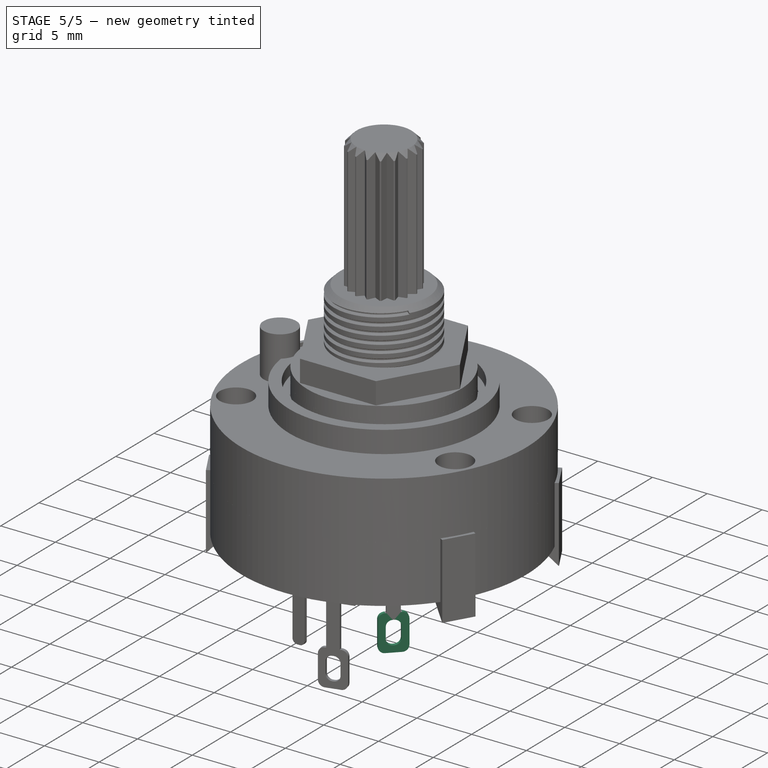
[diagram: stage 5 of 5 — iso view after this stage's code; geometry added in this stage tinted green]
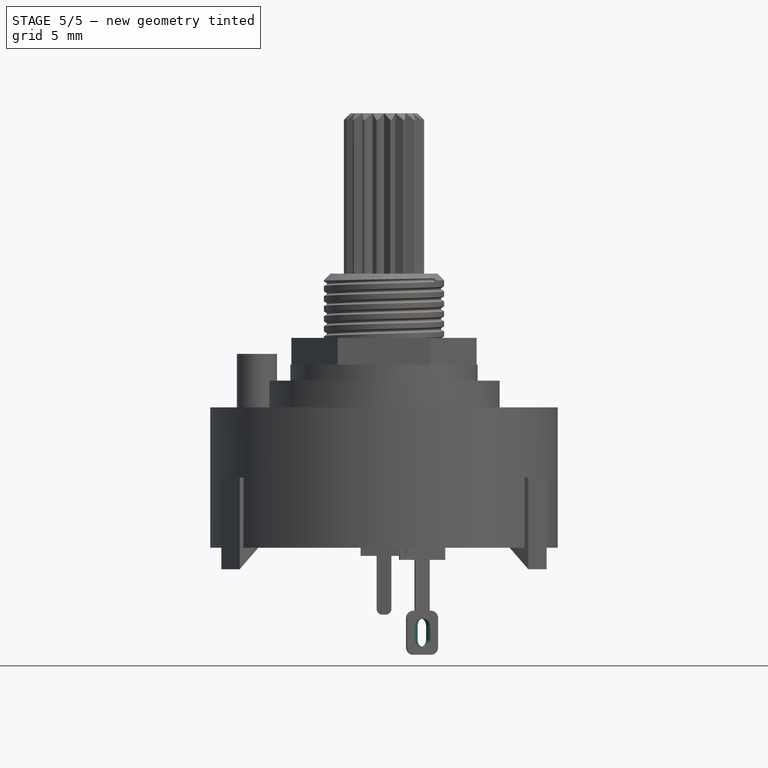
[diagram: stage 5 of 5 — front view after this stage's code; geometry added in this stage tinted green]
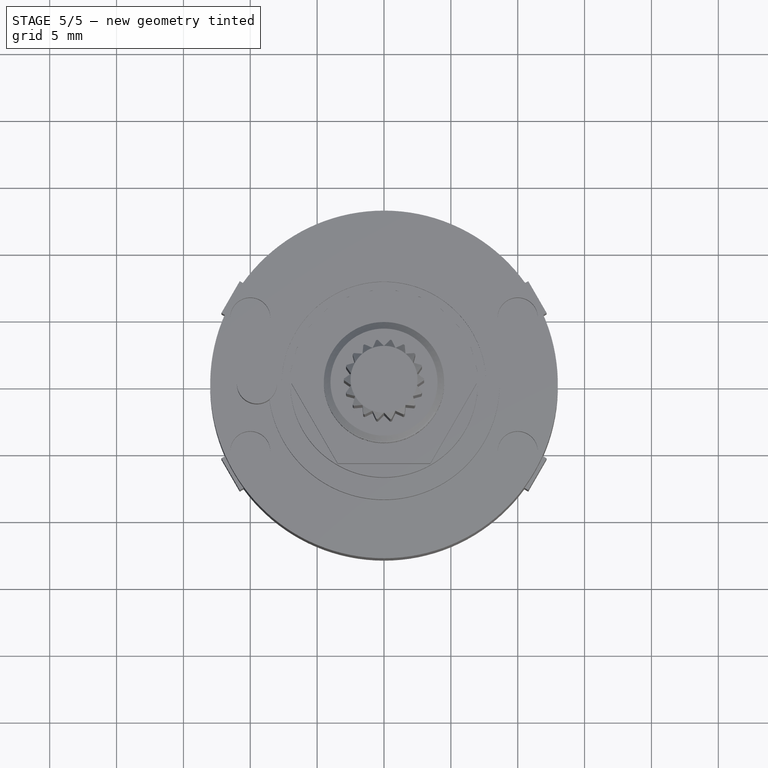
[diagram: stage 5 of 5 — top view after this stage's code; geometry added in this stage tinted green]
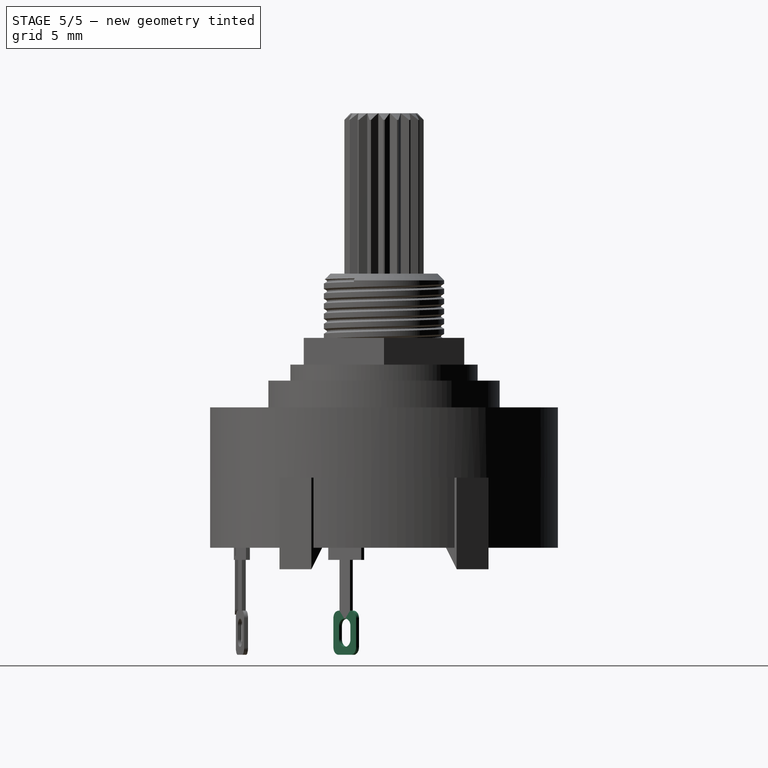
[diagram: stage 5 of 5 — right view after this stage's code; geometry added in this stage tinted green]
FEATURE [Part::Helix] Helix
  Angle = 0
  AttacherType = Attacher::AttachEngine3D
  Height = 8
  LocalCoord = 0
  Pitch = 0.75
  Placement = pos=(0,0,14.1) rot=(0,0,1;1.5708rad)
  Radius = 4.5
  Style = 1
FEATURE [Sketcher::SketchObject] Sketch016
  AttachmentOffset = pos=(0,0,4) rot=(0,0,1;0rad)
  MapMode = 5
  Placement = pos=(0,-4,-9e-16) rot=(1,0,0;1.5708rad)
  Support = -> [XZ_Plane025]
  expr: Constraints[15] = Sketch014.Constraints[16]
  expr: Constraints[16] = Sketch014.Constraints[22]
  expr: Constraints[13] = Sketch014.Constraints[14]
  sketch-geometry (16):
    g0: LineSegment StartX=-1.75 StartY=1.6 StartZ=0 EndX=1.75 EndY=1.6 EndZ=0
    g1: LineSegment StartX=1.75 StartY=1.6 StartZ=0 EndX=1.75 EndY=0.7 EndZ=0
    g2: LineSegment StartX=-1.75 StartY=0.7 StartZ=0 EndX=-1.75 EndY=1.6 EndZ=0
    g3: LineSegment StartX=-1.75 StartY=0.7 StartZ=0 EndX=-0.55 EndY=0.7 EndZ=0
    g4: LineSegment StartX=-0.55 StartY=0.7 StartZ=0 EndX=-0.55 EndY=-3.1 EndZ=0
    g5: LineSegment StartX=0.55 StartY=-3.1 StartZ=0 EndX=0.55 EndY=0.7 EndZ=0
    g6: LineSegment StartX=0.55 StartY=0.7 StartZ=0 EndX=1.75 EndY=0.7 EndZ=0
    g7: LineSegment StartX=-0.55 StartY=-3.1 StartZ=0 EndX=-1.2 EndY=-3.1 EndZ=0
    g8: LineSegment StartX=1.2 StartY=-3.1 StartZ=0 EndX=0.55 EndY=-3.1 EndZ=0
    g9: LineSegment StartX=-1.2 StartY=-3.1 StartZ=0 EndX=-1.2 EndY=-6.4 EndZ=0
    g10: LineSegment StartX=-1.2 StartY=-6.4 StartZ=0 EndX=1.2 EndY=-6.4 EndZ=0
    g11: LineSegment StartX=1.2 StartY=-6.4 StartZ=0 EndX=1.2 EndY=-3.1 EndZ=0
    g12: LineSegment StartX=-0.6 StartY=-3.7 StartZ=0 EndX=0.6 EndY=-3.7 EndZ=0
    g13: LineSegment StartX=0.6 StartY=-3.7 StartZ=0 EndX=0.6 EndY=-5.8 EndZ=0
    g14: LineSegment StartX=0.6 StartY=-5.8 StartZ=0 EndX=-0.6 EndY=-5.8 EndZ=0
    g15: LineSegment StartX=-0.6 StartY=-5.8 StartZ=0 EndX=-0.6 EndY=-3.7 EndZ=0
  constraints (44):
    c: Coincident(g0,g1)
    c: Coincident(g2,g0)
    c: Horizontal(g0)
    c: Vertical(g1)
    c: Vertical(g2)
    c: Symmetric(g1,g2,g-2)
    c: Coincident(g2,g3)
    c: Horizontal(g3)
    c: Coincident(g3,g4)
    c: Vertical(g4)
    c: Vertical(g5)
    c: Coincident(g5,g6)
    c: Coincident(g6,g1)
    c: DistanceX(g0,g0) = 3.5
    c: Symmetric(g5,g3,g-2)
    c: DistanceX(g3,g5) = 1.1
    c: DistanceY(g0,g-1) = -1.6
    c: Coincident(g4,g7)
    c: Horizontal(g7)
    c: Coincident(g8,g5)
    c: Horizontal(g8)
    c: Horizontal(g4,g5)
    c: Coincident(g7,g9)
    c: Vertical(g9)
    c: Coincident(g9,g10)
    c: Coincident(g10,g11)
    c: Coincident(g11,g8)
    c: Vertical(g11)
    c: DistanceY(g11,g11) = 3.3
    c: DistanceX(g10,g10) = 2.4
    c: Symmetric(g9,g10,g-2)
    c: DistanceY(g10,g0) = 8
    c: Coincident(g12,g13)
    c: Coincident(g13,g14)
    c: Coincident(g14,g15)
    c: Coincident(g15,g12)
    c: Horizontal(g14)
    c: Vertical(g13)
    c: Vertical(g15)
    c: Symmetric(g12,g12,g-2)
    c: DistanceX(g14,g14) = 1.2
    c: DistanceY(g13,g13) = 2.1
    c: DistanceY(g9,g14) = 0.6
    c: DistanceY(g9,g2) = 7.1
FEATURE [PartDesign::Pad] Pad010  label="Pad011"
  Length = 0.3
  Length2 = 100
  Midplane = true
  Placement = pos=(0,0,0) rot=(1,0,0;1.5708rad)
  Profile = -> Sketch016
  Type = 0
FEATURE [PartDesign::Fillet] Fillet
  Base = -> Pad010 [Edge29,Edge26,Edge32,Edge23,Edge44,Edge38,Edge37,Edge41]
  BaseFeature = -> Pad010
  Placement = pos=(0,0,0) rot=(1,0,0;1.5708rad)
  Radius = 0.55
FEATURE [PartDesign::Body] Body025  label="Terminal_Pole_1"
  Group = -> [Sketch016,Pad010,Fillet]
  Origin = -> Origin025
  Placement = pos=(0,0,0) rot=(0,0,1;0.785398rad)
  Tip = -> Fillet
FEATURE [PartDesign::FeatureBase] Clone014
  BaseFeature = -> Body025
  Placement = pos=(0,0,0) rot=(0,0,1;0.785398rad)
FEATURE [PartDesign::Body] Body026  label="Terminal_Pole_2"
  BaseFeature = -> Body025
  Group = -> [Clone014]
  Origin = -> Origin026
  Placement = pos=(0,0,0) rot=(0,0,1;1.5708rad)
  Tip = -> Clone014
FEATURE [PartDesign::FeatureBase] Clone015
  BaseFeature = -> Body025
  Placement = pos=(0,0,0) rot=(0,0,1;0.785398rad)
FEATURE [PartDesign::Body] Body027  label="Terminal_Pole_3"
  BaseFeature = -> Body025
  Group = -> [Clone015]
  Origin = -> Origin027
  Placement = pos=(0,0,0) rot=(0,0,1;3.14159rad)
  Tip = -> Clone015
FEATURE [PartDesign::FeatureBase] Clone016
  BaseFeature = -> Body025
  Placement = pos=(0,0,0) rot=(0,0,1;0.785398rad)
FEATURE [PartDesign::Body] Body029  label="Terminal_Throw_1"
  Group = -> [Sketch017,Pad011,Fillet001]
  Origin = -> Origin029
  Placement = pos=(0,0,0) rot=(0,0,1;0.261799rad)
  Tip = -> Fillet001
FEATURE [PartDesign::FeatureBase] Clone017
  BaseFeature = -> Body029
  Placement = pos=(0,0,0) rot=(0,0,1;0.261799rad)
FEATURE [PartDesign::Body] Body030  label="Terminal_Throw_2"
  BaseFeature = -> Body029
  Group = -> [Clone017]
  Origin = -> Origin030
  Placement = pos=(0,0,0) rot=(0,0,1;0.523599rad)
  Tip = -> Clone017
FEATURE [PartDesign::FeatureBase] Clone018
  BaseFeature = -> Body029
  Placement = pos=(0,0,0) rot=(0,0,1;0.261799rad)
FEATURE [PartDesign::Body] Body031  label="Terminal_Throw_3"
  BaseFeature = -> Body029
  Group = -> [Clone018]
  Origin = -> Origin031
  Placement = pos=(0,0,0) rot=(0,0,1;1.0472rad)
  Tip = -> Clone018
FEATURE [PartDesign::FeatureBase] Clone019
  BaseFeature = -> Body029
  Placement = pos=(0,0,0) rot=(0,0,1;0.261799rad)
FEATURE [PartDesign::Body] Body032  label="Terminal_Throw_4"
  BaseFeature = -> Body029
  Group = -> [Clone019]
  Origin = -> Origin032
  Placement = pos=(0,0,0) rot=(0,0,1;1.5708rad)
  Tip = -> Clone019
FEATURE [PartDesign::FeatureBase] Clone020
  BaseFeature = -> Body029
  Placement = pos=(0,0,0) rot=(0,0,1;0.261799rad)
FEATURE [PartDesign::Body] Body033  label="Terminal_Throw_5"
  BaseFeature = -> Body029
  Group = -> [Clone020]
  Origin = -> Origin033
  Placement = pos=(0,0,0) rot=(0,0,1;2.0944rad)
  Tip = -> Clone020
FEATURE [PartDesign::FeatureBase] Clone021
  BaseFeature = -> Body029
  Placement = pos=(0,0,0) rot=(0,0,1;0.261799rad)
FEATURE [PartDesign::Body] Body034  label="Terminal_Throw_6"
  BaseFeature = -> Body029
  Group = -> [Clone021]
  Origin = -> Origin034
  Placement = pos=(0,0,0) rot=(0,0,1;2.61799rad)
  Tip = -> Clone021
FEATURE [PartDesign::FeatureBase] Clone023
  BaseFeature = -> Body029
  Placement = pos=(0,0,0) rot=(0,0,1;0.261799rad)
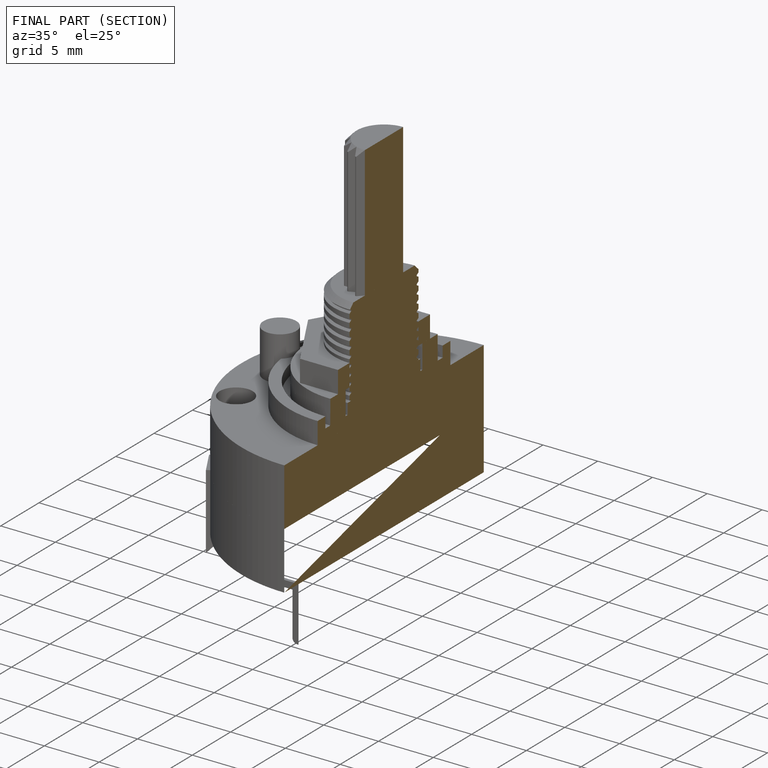
[diagram: finished part — half-section view (interior)]
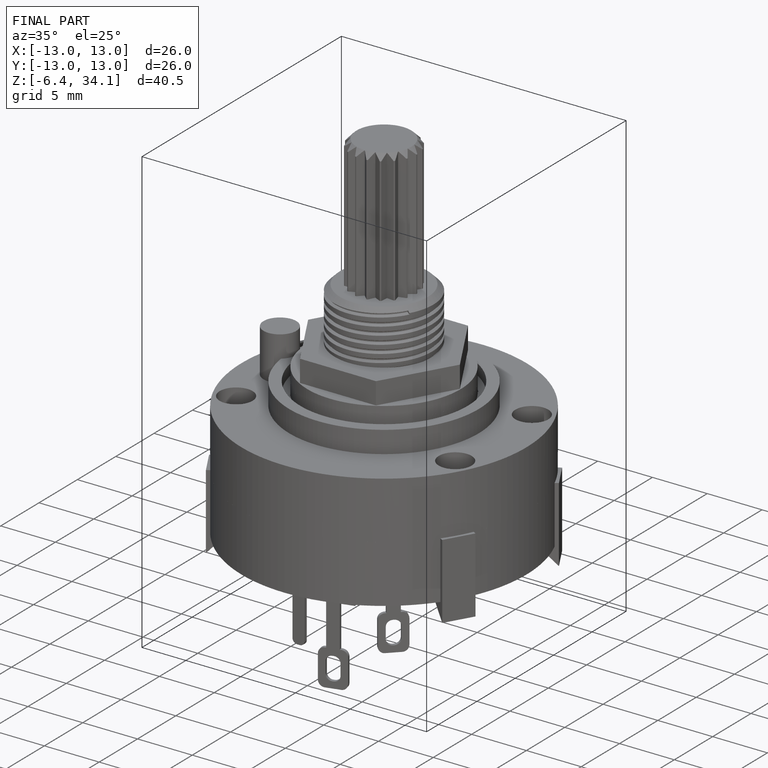
[diagram: finished part — iso view with bounding-box wireframe]
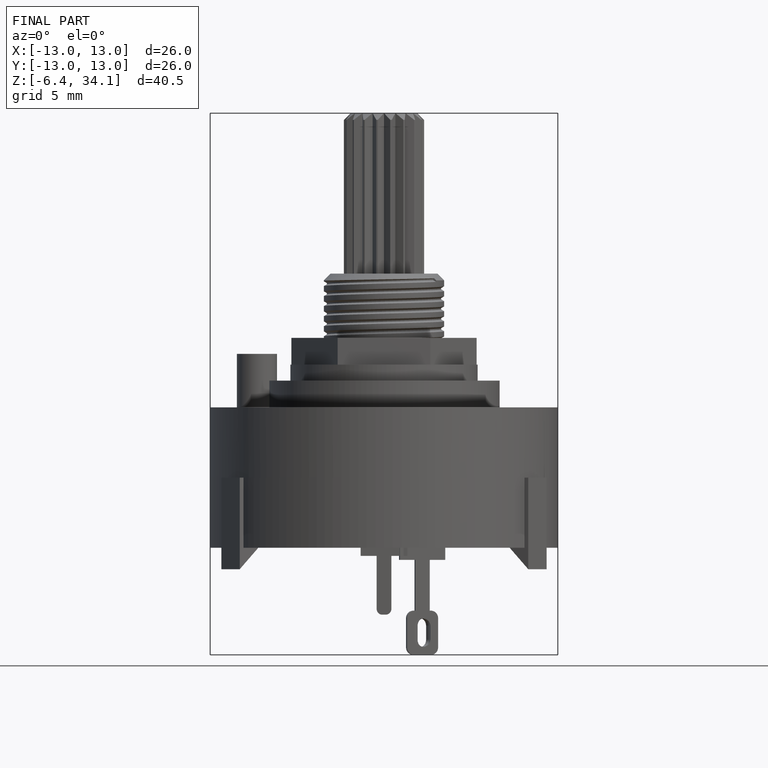
[diagram: finished part — front view with bounding-box wireframe]
